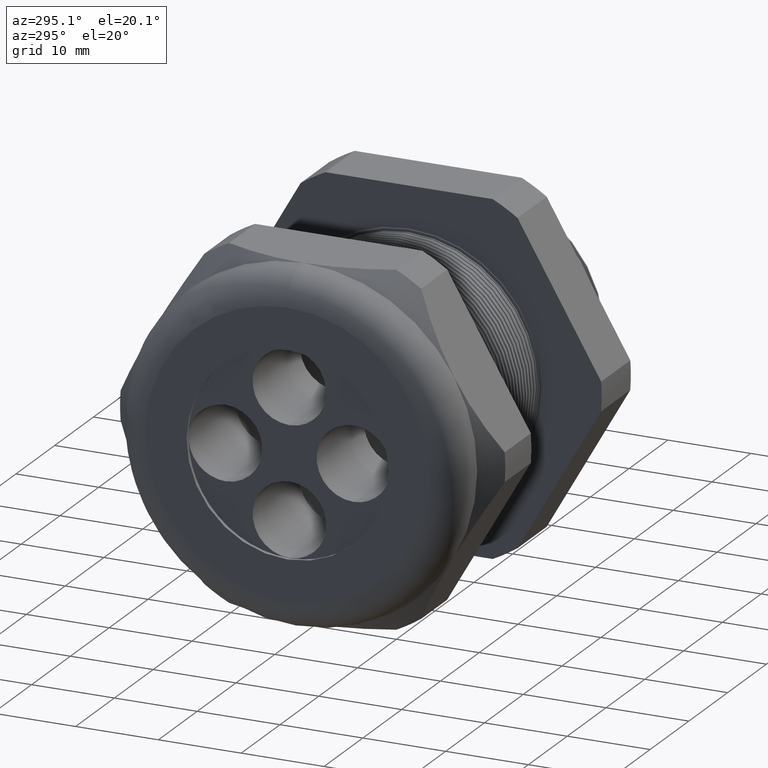
[diagram: clean part render]
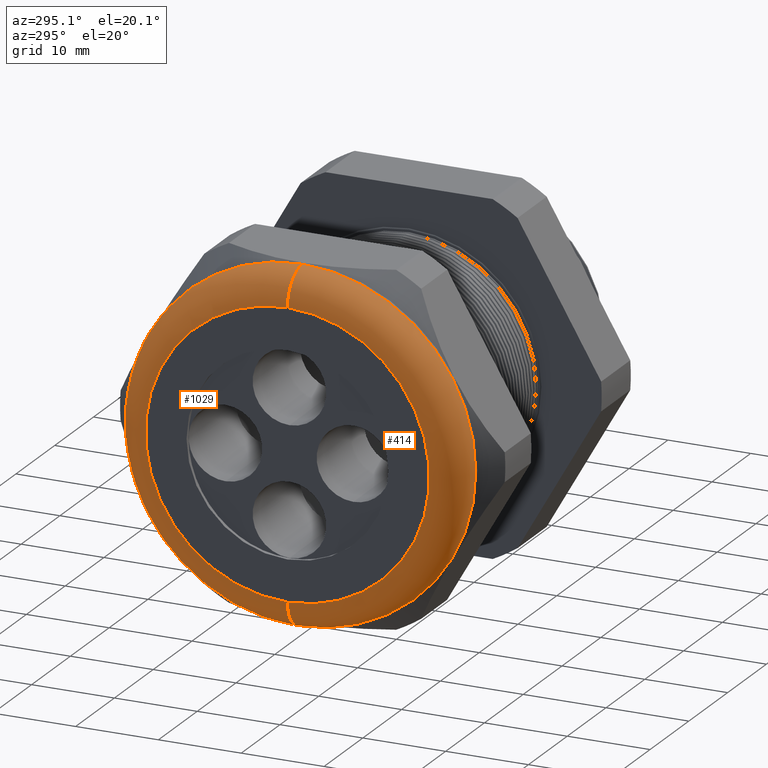
[diagram: same view with one multi-face feature highlighted, each face labeled with its STEP entity id]
A machine part, auxiliary view. The highlighted faces form ONE feature: a constant-radius fillet chain: 2 tangent blend faces with common blend radius 3.81 mm. The faces share edges in the B-rep.
Their STEP definitions:
[1] entity #414 (Torus):
#301 = ORIENTED_EDGE ( 'NONE', *, *, #814, .F. ) ;
#353 = ORIENTED_EDGE ( 'NONE', *, *, #1080, .T. ) ;
#379 = ORIENTED_EDGE ( 'NONE', *, *, #834, .F. ) ;
#389 = ORIENTED_EDGE ( 'NONE', *, *, #1021, .F. ) ;
#391 = EDGE_LOOP ( 'NONE', ( #389, #379, #353, #301 ) ) ;
#414 = ADVANCED_FACE ( 'NONE', ( #2743 ), #2742, .T. ) ;
#814 = EDGE_CURVE ( 'NONE', #1014, #1022, #3414, .T. ) ;
#834 = EDGE_CURVE ( 'NONE', #1015, #1019, #3506, .T. ) ;
#1014 = VERTEX_POINT ( 'NONE', #3735 ) ;
#1015 = VERTEX_POINT ( 'NONE', #3734 ) ;
#1019 = VERTEX_POINT ( 'NONE', #4212 ) ;
#1021 = EDGE_CURVE ( 'NONE', #1019, #1014, #4211, .T. ) ;
#1022 = VERTEX_POINT ( 'NONE', #4206 ) ;
#1080 = EDGE_CURVE ( 'NONE', #1015, #1022, #4287, .T. ) ;
#2737 = DIRECTION ( 'NONE',  ( 0.0000000000000000000, 0.0000000000000000000, 1.000000000000000000 ) ) ;
#2738 = DIRECTION ( 'NONE',  ( -1.000000000000000000, 0.0000000000000000000, 0.0000000000000000000 ) ) ;
#2739 = CARTESIAN_POINT ( 'NONE',  ( -1.689999999999999900, 0.0000000000000000000, 0.0000000000000000000 ) ) ;
#2740 = AXIS2_PLACEMENT_3D ( 'NONE', #2739, #2738, #2737 ) ;
#2742 = TOROIDAL_SURFACE ( 'NONE', #2740, 0.6749999999999997100, 0.1499999999999999900 ) ;
#2743 = FACE_OUTER_BOUND ( 'NONE', #391, .T. ) ;
#3414 = CIRCLE ( 'NONE', #3473, 0.6749999999999997100 ) ;
#3470 = DIRECTION ( 'NONE',  ( 0.0000000000000000000, 0.0000000000000000000, 1.000000000000000000 ) ) ;
#3471 = DIRECTION ( 'NONE',  ( -1.000000000000000000, 0.0000000000000000000, 0.0000000000000000000 ) ) ;
#3472 = CARTESIAN_POINT ( 'NONE',  ( -1.840000000000000100, 0.0000000000000000000, 0.0000000000000000000 ) ) ;
#3473 = AXIS2_PLACEMENT_3D ( 'NONE', #3472, #3471, #3470 ) ;
#3502 = DIRECTION ( 'NONE',  ( 0.0000000000000000000, 0.0000000000000000000, 1.000000000000000000 ) ) ;
#3503 = DIRECTION ( 'NONE',  ( 1.000000000000000000, 0.0000000000000000000, 0.0000000000000000000 ) ) ;
#3504 = CARTESIAN_POINT ( 'NONE',  ( -1.689999999999999900, 0.0000000000000000000, 0.0000000000000000000 ) ) ;
#3505 = AXIS2_PLACEMENT_3D ( 'NONE', #3504, #3503, #3502 ) ;
#3506 = CIRCLE ( 'NONE', #3505, 0.8249999999999998400 ) ;
#3734 = CARTESIAN_POINT ( 'NONE',  ( -1.689999999999999900, 1.010333609296566100E-016, 0.8249999999999998400 ) ) ;
#3735 = CARTESIAN_POINT ( 'NONE',  ( -1.840000000000000100, 9.184850993605146000E-017, -0.6749999999999997100 ) ) ;
#4206 = CARTESIAN_POINT ( 'NONE',  ( -1.840000000000000100, 0.0000000000000000000, 0.6749999999999997100 ) ) ;
#4207 = DIRECTION ( 'NONE',  ( 0.0000000000000000000, -1.224646799147353200E-016, 1.000000000000000000 ) ) ;
#4208 = DIRECTION ( 'NONE',  ( 0.0000000000000000000, 1.000000000000000000, 1.224646799147353200E-016 ) ) ;
#4209 = CARTESIAN_POINT ( 'NONE',  ( -1.689999999999999900, 8.266365894244631900E-017, -0.6749999999999997100 ) ) ;
#4210 = AXIS2_PLACEMENT_3D ( 'NONE', #4209, #4208, #4207 ) ;
#4211 = CIRCLE ( 'NONE', #4210, 0.1499999999999999700 ) ;
#4212 = CARTESIAN_POINT ( 'NONE',  ( -1.689999999999999900, 0.0000000000000000000, -0.8249999999999998400 ) ) ;
#4283 = DIRECTION ( 'NONE',  ( 0.0000000000000000000, 0.0000000000000000000, -1.000000000000000000 ) ) ;
#4284 = DIRECTION ( 'NONE',  ( 0.0000000000000000000, -1.000000000000000000, 0.0000000000000000000 ) ) ;
#4285 = CARTESIAN_POINT ( 'NONE',  ( -1.689999999999999900, 0.0000000000000000000, 0.6749999999999997100 ) ) ;
#4286 = AXIS2_PLACEMENT_3D ( 'NONE', #4285, #4284, #4283 ) ;
#4287 = CIRCLE ( 'NONE', #4286, 0.1499999999999999700 ) ;
[2] entity #1029 (Torus):
#99 = CARTESIAN_POINT ( 'NONE',  ( -1.840000000000000100, 0.0000000000000000000, 0.0000000000000000000 ) ) ;
#167 = DIRECTION ( 'NONE',  ( -1.000000000000000000, 0.0000000000000000000, 0.0000000000000000000 ) ) ;
#259 = DIRECTION ( 'NONE',  ( 0.0000000000000000000, 0.0000000000000000000, 1.000000000000000000 ) ) ;
#1014 = VERTEX_POINT ( 'NONE', #3735 ) ;
#1015 = VERTEX_POINT ( 'NONE', #3734 ) ;
#1016 = ORIENTED_EDGE ( 'NONE', *, *, #1017, .F. ) ;
#1017 = EDGE_CURVE ( 'NONE', #1022, #1014, #3477, .T. ) ;
#1018 = EDGE_CURVE ( 'NONE', #1019, #1015, #4217, .T. ) ;
#1019 = VERTEX_POINT ( 'NONE', #4212 ) ;
#1020 = ORIENTED_EDGE ( 'NONE', *, *, #1021, .T. ) ;
#1021 = EDGE_CURVE ( 'NONE', #1019, #1014, #4211, .T. ) ;
#1022 = VERTEX_POINT ( 'NONE', #4206 ) ;
#1025 = ORIENTED_EDGE ( 'NONE', *, *, #1018, .F. ) ;
#1027 = EDGE_LOOP ( 'NONE', ( #1025, #1020, #1016, #1066 ) ) ;
#1029 = ADVANCED_FACE ( 'NONE', ( #4200 ), #4199, .T. ) ;
#1066 = ORIENTED_EDGE ( 'NONE', *, *, #1080, .F. ) ;
#1080 = EDGE_CURVE ( 'NONE', #1015, #1022, #4287, .T. ) ;
#3218 = AXIS2_PLACEMENT_3D ( 'NONE', #99, #167, #259 ) ;
#3477 = CIRCLE ( 'NONE', #3218, 0.6749999999999997100 ) ;
#3734 = CARTESIAN_POINT ( 'NONE',  ( -1.689999999999999900, 1.010333609296566100E-016, 0.8249999999999998400 ) ) ;
#3735 = CARTESIAN_POINT ( 'NONE',  ( -1.840000000000000100, 9.184850993605146000E-017, -0.6749999999999997100 ) ) ;
#4194 = DIRECTION ( 'NONE',  ( 0.0000000000000000000, 0.0000000000000000000, 1.000000000000000000 ) ) ;
#4195 = DIRECTION ( 'NONE',  ( -1.000000000000000000, 0.0000000000000000000, 0.0000000000000000000 ) ) ;
#4196 = CARTESIAN_POINT ( 'NONE',  ( -1.689999999999999900, 0.0000000000000000000, 0.0000000000000000000 ) ) ;
#4197 = AXIS2_PLACEMENT_3D ( 'NONE', #4196, #4195, #4194 ) ;
#4199 = TOROIDAL_SURFACE ( 'NONE', #4197, 0.6749999999999997100, 0.1499999999999999900 ) ;
#4200 = FACE_OUTER_BOUND ( 'NONE', #1027, .T. ) ;
#4206 = CARTESIAN_POINT ( 'NONE',  ( -1.840000000000000100, 0.0000000000000000000, 0.6749999999999997100 ) ) ;
#4207 = DIRECTION ( 'NONE',  ( 0.0000000000000000000, -1.224646799147353200E-016, 1.000000000000000000 ) ) ;
#4208 = DIRECTION ( 'NONE',  ( 0.0000000000000000000, 1.000000000000000000, 1.224646799147353200E-016 ) ) ;
#4209 = CARTESIAN_POINT ( 'NONE',  ( -1.689999999999999900, 8.266365894244631900E-017, -0.6749999999999997100 ) ) ;
#4210 = AXIS2_PLACEMENT_3D ( 'NONE', #4209, #4208, #4207 ) ;
#4211 = CIRCLE ( 'NONE', #4210, 0.1499999999999999700 ) ;
#4212 = CARTESIAN_POINT ( 'NONE',  ( -1.689999999999999900, 0.0000000000000000000, -0.8249999999999998400 ) ) ;
#4213 = DIRECTION ( 'NONE',  ( 0.0000000000000000000, 0.0000000000000000000, 1.000000000000000000 ) ) ;
#4214 = DIRECTION ( 'NONE',  ( 1.000000000000000000, 0.0000000000000000000, 0.0000000000000000000 ) ) ;
#4215 = CARTESIAN_POINT ( 'NONE',  ( -1.689999999999999900, 0.0000000000000000000, 0.0000000000000000000 ) ) ;
#4216 = AXIS2_PLACEMENT_3D ( 'NONE', #4215, #4214, #4213 ) ;
#4217 = CIRCLE ( 'NONE', #4216, 0.8249999999999998400 ) ;
#4283 = DIRECTION ( 'NONE',  ( 0.0000000000000000000, 0.0000000000000000000, -1.000000000000000000 ) ) ;
#4284 = DIRECTION ( 'NONE',  ( 0.0000000000000000000, -1.000000000000000000, 0.0000000000000000000 ) ) ;
#4285 = CARTESIAN_POINT ( 'NONE',  ( -1.689999999999999900, 0.0000000000000000000, 0.6749999999999997100 ) ) ;
#4286 = AXIS2_PLACEMENT_3D ( 'NONE', #4285, #4284, #4283 ) ;
#4287 = CIRCLE ( 'NONE', #4286, 0.1499999999999999700 ) ;